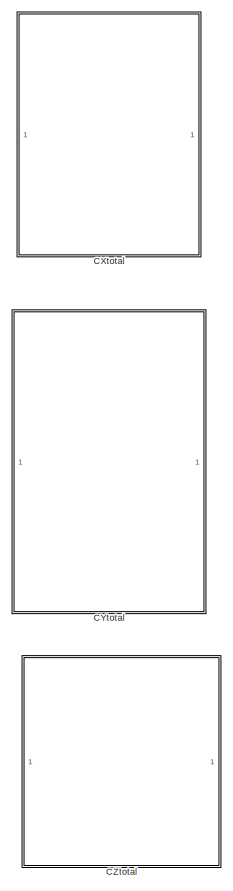
[diagram: root canvas - part 1/2, top center region]
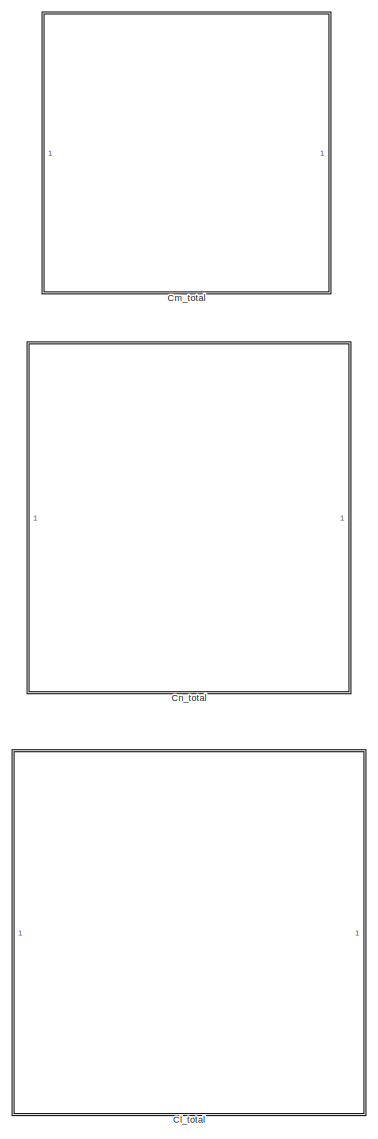
[diagram: root canvas - part 2/2, full width, bottom band]
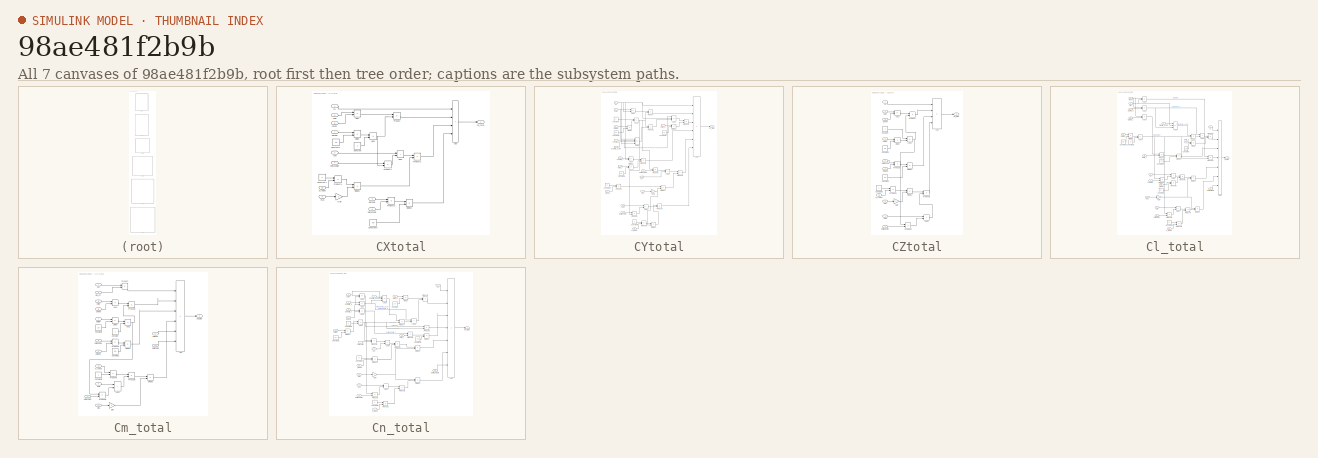
[diagram: thumbnail index - all 7 canvases of the model, root first then tree order]
MODEL slx_98ae481f2b9b
KIND library
CONFIG AbsTol = auto
CONFIG EnableMultiTasking = off
CONFIG FixedStep = auto
CONFIG MaxStep = auto
CONFIG MinStep = auto
CONFIG RelTol = 1e-3
CONFIG SampleTimeConstraint = Unconstrained
CONFIG SolverName = VariableStepAuto
CONFIG StartTime = 0.0
CONFIG StopTime = 10.0
BLOCK [SubSystem] CXtotal
BLOCK [Sum] CXtotal/Add
  IconShape = rectangular
  Inputs = ++++
BLOCK [Sum] CXtotal/Add1
  IconShape = rectangular
  Inputs = +-
BLOCK [Sum] CXtotal/Add2
  IconShape = rectangular
  Inputs = -+
BLOCK [Sum] CXtotal/Add3
  IconShape = rectangular
BLOCK [Inport] CXtotal/CX
BLOCK [Inport] CXtotal/CXHT0
  Port = 6
BLOCK [Outport] CXtotal/CX_total
BLOCK [Inport] CXtotal/CXlef
  Port = 2
BLOCK [Inport] CXtotal/CXq
  Port = 3
BLOCK [Constant] CXtotal/Constant
BLOCK [Constant] CXtotal/Constant1
  Value = 25
BLOCK [Constant] CXtotal/Constant4
  Value = c
BLOCK [Constant] CXtotal/Constant5
  Value = 60
BLOCK [Product] CXtotal/Divide
  Inputs = */
BLOCK [Product] CXtotal/Divide2
  Inputs = */
BLOCK [Product] CXtotal/Divide3
  Inputs = */
BLOCK [Gain] CXtotal/Gain
  Gain = 2
BLOCK [Product] CXtotal/Product
BLOCK [Product] CXtotal/Product1
BLOCK [Product] CXtotal/Product2
BLOCK [Product] CXtotal/Product3
BLOCK [Product] CXtotal/Product4
BLOCK [Inport] CXtotal/Vtas
  Port = 8
BLOCK [Inport] CXtotal/deltaCXSB
  Port = 5
BLOCK [Inport] CXtotal/deltaCXqlef
  Port = 4
BLOCK [Inport] CXtotal/deltaSB
  Port = 9
BLOCK [Inport] CXtotal/deltalef
  Port = 7
BLOCK [Inport] CXtotal/q_radps
  Port = 10
BLOCK [SubSystem] CYtotal
BLOCK [Sum] CYtotal/Add
  IconShape = rectangular
  Inputs = ++++++
BLOCK [Sum] CYtotal/Add1
  IconShape = rectangular
  Inputs = +-
BLOCK [Sum] CYtotal/Add2
  IconShape = rectangular
  Inputs = +-
BLOCK [Sum] CYtotal/Add3
  IconShape = rectangular
  Inputs = --++
BLOCK [Sum] CYtotal/Add4
  IconShape = rectangular
  Inputs = +-+
BLOCK [Sum] CYtotal/Add5
  IconShape = rectangular
  Inputs = +-
BLOCK [Sum] CYtotal/Add6
  IconShape = rectangular
BLOCK [Sum] CYtotal/Add7
  IconShape = rectangular
BLOCK [Inport] CYtotal/CY
BLOCK [Outport] CYtotal/CY_total
BLOCK [Inport] CYtotal/CYdelta_a
  Port = 4
BLOCK [Inport] CYtotal/CYdelta_aLEF
  Port = 5
BLOCK [Inport] CYtotal/CYdelta_r
  Port = 6
BLOCK [Inport] CYtotal/CYlef
  Port = 2
BLOCK [Inport] CYtotal/CYp
  Port = 12
BLOCK [Inport] CYtotal/CYr
  Port = 10
BLOCK [Constant] CYtotal/Constant
BLOCK [Constant] CYtotal/Constant1
  Value = 25
BLOCK [Constant] CYtotal/Constant2
  Value = 20
BLOCK [Constant] CYtotal/Constant3
  Value = 30
BLOCK [Constant] CYtotal/Constant4
  Value = b
BLOCK [Constant] CYtotal/Constant5
  Value = b
BLOCK [Product] CYtotal/Divide
  Inputs = */
BLOCK [Product] CYtotal/Divide1
  Inputs = */
BLOCK [Product] CYtotal/Divide2
  Inputs = */
BLOCK [Product] CYtotal/Divide3
  Inputs = */
BLOCK [Product] CYtotal/Divide4
  Inputs = */
BLOCK [Gain] CYtotal/Gain
  Gain = 2
BLOCK [Product] CYtotal/Product
BLOCK [Product] CYtotal/Product1
BLOCK [Product] CYtotal/Product2
BLOCK [Product] CYtotal/Product3
BLOCK [Product] CYtotal/Product4
BLOCK [Product] CYtotal/Product5
BLOCK [Product] CYtotal/Product6
BLOCK [Product] CYtotal/Product7
BLOCK [Product] CYtotal/Product8
BLOCK [Product] CYtotal/Product9
BLOCK [Inport] CYtotal/Vtas
  Port = 11
BLOCK [Inport] CYtotal/deltaCYplef
  Port = 13
BLOCK [Inport] CYtotal/deltaCYrLEF
  Port = 8
BLOCK [Inport] CYtotal/delta_a
  Port = 9
BLOCK [Inport] CYtotal/delta_r
  Port = 7
BLOCK [Inport] CYtotal/deltalef1
  Port = 3
BLOCK [Inport] CYtotal/p_radps
  Port = 15
BLOCK [Inport] CYtotal/r_radps
  Port = 14
BLOCK [SubSystem] CZtotal
BLOCK [Sum] CZtotal/Add
  IconShape = rectangular
  Inputs = ++++
BLOCK [Sum] CZtotal/Add1
  IconShape = rectangular
  Inputs = +-
BLOCK [Sum] CZtotal/Add2
  IconShape = rectangular
  Inputs = +-
BLOCK [Sum] CZtotal/Add3
  IconShape = rectangular
BLOCK [Inport] CZtotal/CZ
BLOCK [Inport] CZtotal/CZHT0
  Port = 3
BLOCK [Outport] CZtotal/CZ_total
BLOCK [Inport] CZtotal/CZlef
  Port = 2
BLOCK [Inport] CZtotal/CZq
  Port = 4
BLOCK [Constant] CZtotal/Constant
BLOCK [Constant] CZtotal/Constant1
  Value = 25
BLOCK [Constant] CZtotal/Constant2
  Value = 60
BLOCK [Constant] CZtotal/Constant3
  Value = c
BLOCK [Product] CZtotal/Divide
  Inputs = */
BLOCK [Product] CZtotal/Divide1
  Inputs = */
BLOCK [Product] CZtotal/Divide2
  Inputs = */
BLOCK [Gain] CZtotal/Gain
  Gain = 2
BLOCK [Product] CZtotal/Product
BLOCK [Product] CZtotal/Product1
BLOCK [Product] CZtotal/Product2
BLOCK [Product] CZtotal/Product3
BLOCK [Product] CZtotal/Product4
BLOCK [Inport] CZtotal/Vtas
  Port = 8
BLOCK [Inport] CZtotal/deltaCZSB
  Port = 6
BLOCK [Inport] CZtotal/deltaCZqlef
  Port = 9
BLOCK [Inport] CZtotal/deltaSB
  Port = 7
BLOCK [Inport] CZtotal/deltalef
  Port = 5
BLOCK [Inport] CZtotal/q_radps
  Port = 10
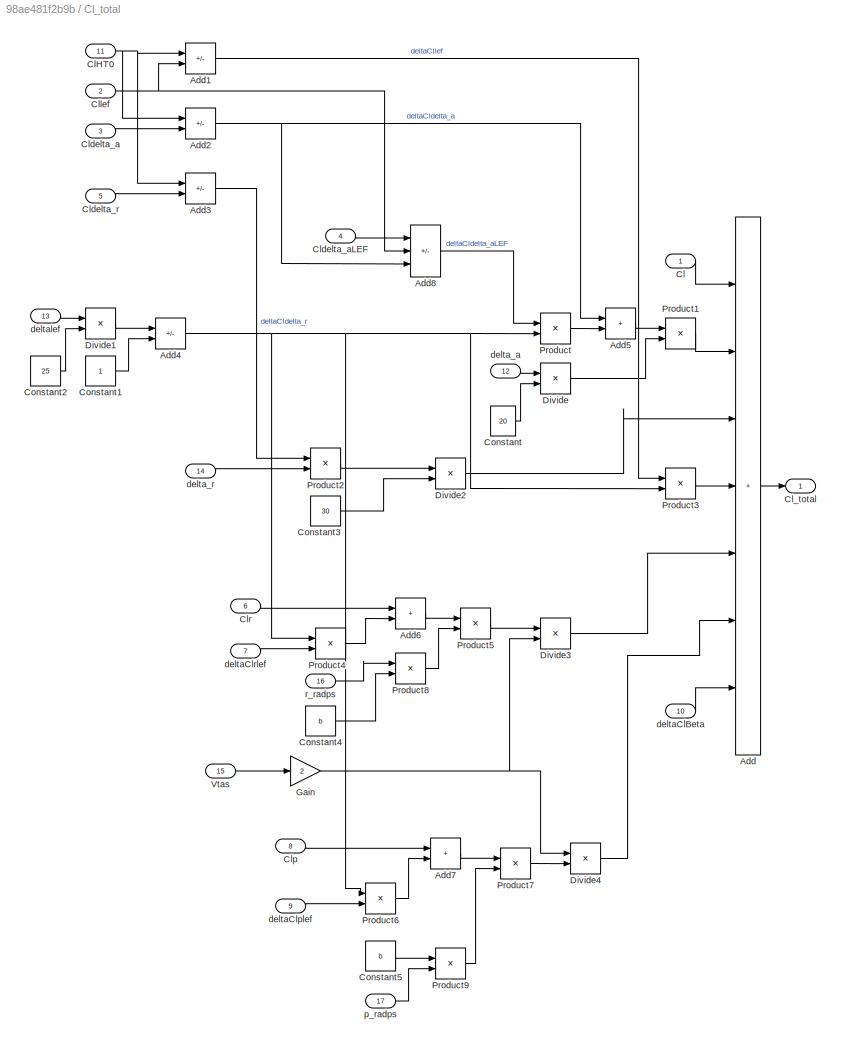
BLOCK [SubSystem] Cl_total
BLOCK [Sum] Cl_total/Add
  IconShape = rectangular
  Inputs = +++++++
BLOCK [Sum] Cl_total/Add1
  IconShape = rectangular
  Inputs = -+
BLOCK [Sum] Cl_total/Add2
  IconShape = rectangular
  Inputs = -+
BLOCK [Sum] Cl_total/Add3
  IconShape = rectangular
  Inputs = -+
BLOCK [Sum] Cl_total/Add4
  IconShape = rectangular
  Inputs = -+
BLOCK [Sum] Cl_total/Add5
  IconShape = rectangular
BLOCK [Sum] Cl_total/Add6
  IconShape = rectangular
BLOCK [Sum] Cl_total/Add7
  IconShape = rectangular
BLOCK [Sum] Cl_total/Add8
  IconShape = rectangular
  Inputs = +--
BLOCK [Inport] Cl_total/Cl
BLOCK [Inport] Cl_total/ClHT0
  Port = 11
BLOCK [Outport] Cl_total/Cl_total
BLOCK [Inport] Cl_total/Cldelta_a
  Port = 3
BLOCK [Inport] Cl_total/Cldelta_aLEF
  Port = 4
BLOCK [Inport] Cl_total/Cldelta_r
  Port = 5
BLOCK [Inport] Cl_total/Cllef
  Port = 2
BLOCK [Inport] Cl_total/Clp
  Port = 8
BLOCK [Inport] Cl_total/Clr
  Port = 6
BLOCK [Constant] Cl_total/Constant
  Value = 20
BLOCK [Constant] Cl_total/Constant1
BLOCK [Constant] Cl_total/Constant2
  Value = 25
BLOCK [Constant] Cl_total/Constant3
  Value = 30
BLOCK [Constant] Cl_total/Constant4
  Value = b
BLOCK [Constant] Cl_total/Constant5
  Value = b
BLOCK [Product] Cl_total/Divide
  Inputs = */
BLOCK [Product] Cl_total/Divide1
  Inputs = */
BLOCK [Product] Cl_total/Divide2
  Inputs = */
BLOCK [Product] Cl_total/Divide3
  Inputs = */
BLOCK [Product] Cl_total/Divide4
  Inputs = /*
BLOCK [Gain] Cl_total/Gain
  Gain = 2
BLOCK [Product] Cl_total/Product
BLOCK [Product] Cl_total/Product1
BLOCK [Product] Cl_total/Product2
BLOCK [Product] Cl_total/Product3
BLOCK [Product] Cl_total/Product4
BLOCK [Product] Cl_total/Product5
BLOCK [Product] Cl_total/Product6
BLOCK [Product] Cl_total/Product7
BLOCK [Product] Cl_total/Product8
BLOCK [Product] Cl_total/Product9
BLOCK [Inport] Cl_total/Vtas
  Port = 15
BLOCK [Inport] Cl_total/deltaClBeta
  Port = 10
BLOCK [Inport] Cl_total/deltaClplef
  Port = 9
BLOCK [Inport] Cl_total/deltaClrlef
  Port = 7
BLOCK [Inport] Cl_total/delta_a
  Port = 12
BLOCK [Inport] Cl_total/delta_r
  Port = 14
BLOCK [Inport] Cl_total/deltalef
  Port = 13
BLOCK [Inport] Cl_total/p_radps
  Port = 17
BLOCK [Inport] Cl_total/r_radps
  Port = 16
BLOCK [SubSystem] Cm_total
BLOCK [Sum] Cm_total/Add
  IconShape = rectangular
  Inputs = ++++++
BLOCK [Sum] Cm_total/Add1
  IconShape = rectangular
  Inputs = +-
BLOCK [Sum] Cm_total/Add2
  IconShape = rectangular
  Inputs = -+
BLOCK [Sum] Cm_total/Add3
  IconShape = rectangular
BLOCK [Inport] Cm_total/Cm
BLOCK [Inport] Cm_total/CmHT0
  Port = 8
BLOCK [Outport] Cm_total/Cm_total
BLOCK [Inport] Cm_total/Cmlef
  Port = 6
BLOCK [Inport] Cm_total/Cmq
  Port = 3
BLOCK [Constant] Cm_total/Constant
BLOCK [Constant] Cm_total/Constant1
  Value = 25
BLOCK [Constant] Cm_total/Constant2
  Value = 60
BLOCK [Constant] Cm_total/Constant3
  Value = c
BLOCK [Product] Cm_total/Divide
  Inputs = */
BLOCK [Product] Cm_total/Divide1
  Inputs = */
BLOCK [Product] Cm_total/Divide2
  Inputs = */
BLOCK [Gain] Cm_total/Gain
  Gain = 2
BLOCK [Product] Cm_total/Product
BLOCK [Product] Cm_total/Product1
BLOCK [Product] Cm_total/Product2
BLOCK [Product] Cm_total/Product3
BLOCK [Product] Cm_total/Product4
BLOCK [Product] Cm_total/Product5
BLOCK [Inport] Cm_total/Vtas
  Port = 10
BLOCK [Inport] Cm_total/deltaCm
  Port = 11
BLOCK [Inport] Cm_total/deltaCmSB
  Port = 9
BLOCK [Inport] Cm_total/deltaCmds
  Port = 12
BLOCK [Inport] Cm_total/deltaCmqlef
  Port = 4
BLOCK [Inport] Cm_total/deltaSB
  Port = 5
BLOCK [Inport] Cm_total/deltalef
  Port = 7
BLOCK [Inport] Cm_total/eta_HT
  Port = 2
BLOCK [Inport] Cm_total/q_radps
  Port = 13
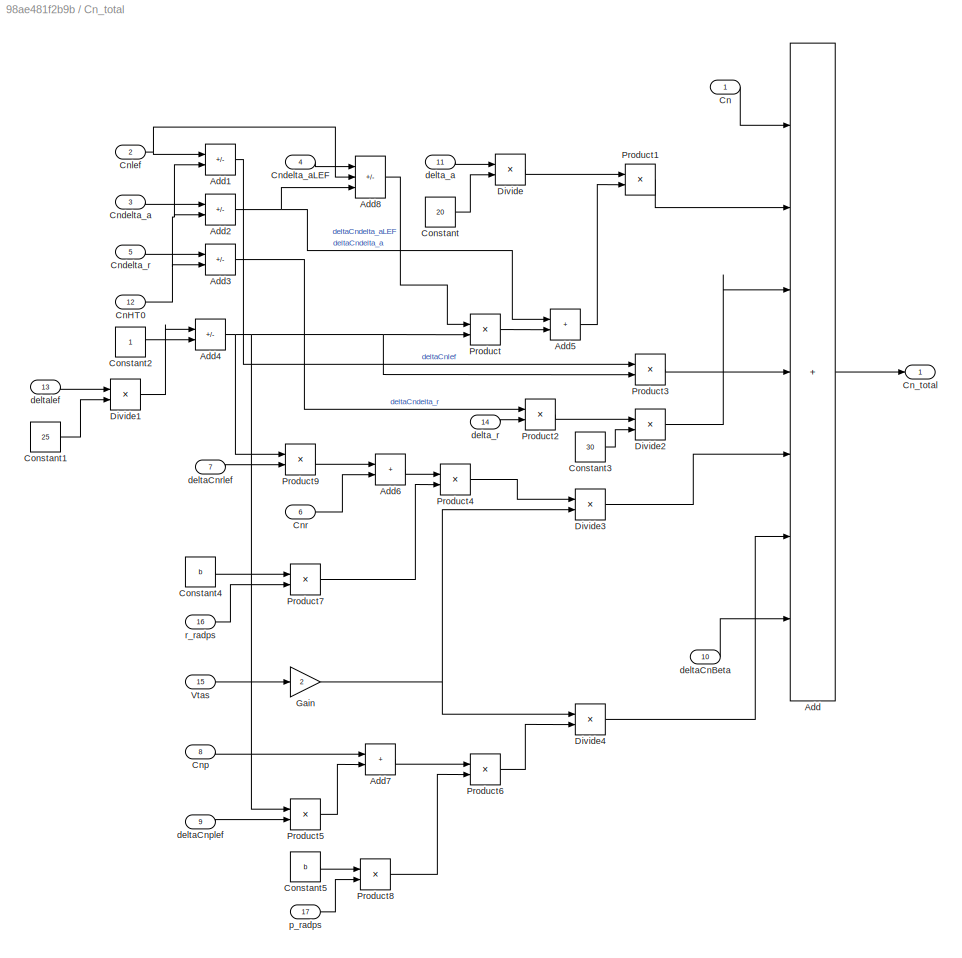
BLOCK [SubSystem] Cn_total
BLOCK [Sum] Cn_total/Add
  IconShape = rectangular
  Inputs = +++++++
BLOCK [Sum] Cn_total/Add1
  IconShape = rectangular
  Inputs = +-
BLOCK [Sum] Cn_total/Add2
  IconShape = rectangular
  Inputs = +-
BLOCK [Sum] Cn_total/Add3
  IconShape = rectangular
  Inputs = +-
BLOCK [Sum] Cn_total/Add4
  IconShape = rectangular
  Inputs = -+
BLOCK [Sum] Cn_total/Add5
  IconShape = rectangular
BLOCK [Sum] Cn_total/Add6
  IconShape = rectangular
BLOCK [Sum] Cn_total/Add7
  IconShape = rectangular
BLOCK [Sum] Cn_total/Add8
  IconShape = rectangular
  Inputs = +--
BLOCK [Inport] Cn_total/Cn
BLOCK [Inport] Cn_total/CnHT0
  Port = 12
BLOCK [Outport] Cn_total/Cn_total
BLOCK [Inport] Cn_total/Cndelta_a
  Port = 3
BLOCK [Inport] Cn_total/Cndelta_aLEF
  Port = 4
BLOCK [Inport] Cn_total/Cndelta_r
  Port = 5
BLOCK [Inport] Cn_total/Cnlef
  Port = 2
BLOCK [Inport] Cn_total/Cnp
  Port = 8
BLOCK [Inport] Cn_total/Cnr
  Port = 6
BLOCK [Constant] Cn_total/Constant
  Value = 20
BLOCK [Constant] Cn_total/Constant1
  Value = 25
BLOCK [Constant] Cn_total/Constant2
BLOCK [Constant] Cn_total/Constant3
  Value = 30
BLOCK [Constant] Cn_total/Constant4
  Value = b
BLOCK [Constant] Cn_total/Constant5
  Value = b
BLOCK [Product] Cn_total/Divide
  Inputs = */
BLOCK [Product] Cn_total/Divide1
  Inputs = */
BLOCK [Product] Cn_total/Divide2
  Inputs = */
BLOCK [Product] Cn_total/Divide3
  Inputs = */
BLOCK [Product] Cn_total/Divide4
  Inputs = /*
BLOCK [Gain] Cn_total/Gain
  Gain = 2
BLOCK [Product] Cn_total/Product
BLOCK [Product] Cn_total/Product1
BLOCK [Product] Cn_total/Product2
BLOCK [Product] Cn_total/Product3
BLOCK [Product] Cn_total/Product4
BLOCK [Product] Cn_total/Product5
BLOCK [Product] Cn_total/Product6
BLOCK [Product] Cn_total/Product7
BLOCK [Product] Cn_total/Product8
BLOCK [Product] Cn_total/Product9
BLOCK [Inport] Cn_total/Vtas
  Port = 15
BLOCK [Inport] Cn_total/deltaCnBeta
  Port = 10
BLOCK [Inport] Cn_total/deltaCnplef
  Port = 9
BLOCK [Inport] Cn_total/deltaCnrlef
  Port = 7
BLOCK [Inport] Cn_total/delta_a
  Port = 11
BLOCK [Inport] Cn_total/delta_r
  Port = 14
BLOCK [Inport] Cn_total/deltalef
  Port = 13
BLOCK [Inport] Cn_total/p_radps
  Port = 17
BLOCK [Inport] Cn_total/r_radps
  Port = 16
LINE CXtotal/Add1:1 -> CXtotal/Product:1
NET CXtotal/Add2:1 -> CXtotal/Product1:2, CXtotal/Product:2
LINE CXtotal/Add3:1 -> CXtotal/Product2:1
LINE CXtotal/Add:1 -> CXtotal/CX_total:1
LINE CXtotal/CX:1 -> CXtotal/Add:1
LINE CXtotal/CXHT0:1 -> CXtotal/Add1:2
LINE CXtotal/CXlef:1 -> CXtotal/Add1:1
LINE CXtotal/CXq:1 -> CXtotal/Add3:1
LINE CXtotal/Constant1:1 -> CXtotal/Divide:2
LINE CXtotal/Constant4:1 -> CXtotal/Product4:1
LINE CXtotal/Constant5:1 -> CXtotal/Divide3:2
LINE CXtotal/Constant:1 -> CXtotal/Add2:2
LINE CXtotal/Divide2:1 -> CXtotal/Product2:2
LINE CXtotal/Divide3:1 -> CXtotal/Add:4
LINE CXtotal/Divide:1 -> CXtotal/Add2:1
LINE CXtotal/Gain:1 -> CXtotal/Divide2:2
LINE CXtotal/Product1:1 -> CXtotal/Add3:2
LINE CXtotal/Product2:1 -> CXtotal/Add:3
LINE CXtotal/Product3:1 -> CXtotal/Divide3:1
LINE CXtotal/Product4:1 -> CXtotal/Divide2:1
LINE CXtotal/Product:1 -> CXtotal/Add:2
LINE CXtotal/Vtas:1 -> CXtotal/Gain:1
LINE CXtotal/deltaCXSB:1 -> CXtotal/Product3:2
LINE CXtotal/deltaCXqlef:1 -> CXtotal/Product1:1
LINE CXtotal/deltaSB:1 -> CXtotal/Product3:1
LINE CXtotal/deltalef:1 -> CXtotal/Divide:1
LINE CXtotal/q_radps:1 -> CXtotal/Product4:2
LINE CYtotal/Add1:1 -> CYtotal/Product:1
NET CYtotal/Add2:1 -> CYtotal/Product1:1, CYtotal/Product4:1, CYtotal/Product6:2, CYtotal/Product:2
LINE CYtotal/Add3:1 -> CYtotal/Product1:2
LINE CYtotal/Add4:1 -> CYtotal/Product2:1
LINE CYtotal/Add5:1 -> CYtotal/Product3:1
LINE CYtotal/Add6:1 -> CYtotal/Product5:1
LINE CYtotal/Add7:1 -> CYtotal/Product7:2
LINE CYtotal/Add:1 -> CYtotal/CY_total:1
NET CYtotal/CY:1 -> CYtotal/Add1:2, CYtotal/Add3:4, CYtotal/Add4:2, CYtotal/Add5:2, CYtotal/Add:1
NET CYtotal/CYdelta_a:1 -> CYtotal/Add3:2, CYtotal/Add4:1
LINE CYtotal/CYdelta_aLEF:1 -> CYtotal/Add3:3
LINE CYtotal/CYdelta_r:1 -> CYtotal/Add5:1
NET CYtotal/CYlef:1 -> CYtotal/Add1:1, CYtotal/Add3:1
LINE CYtotal/CYp:1 -> CYtotal/Add7:1
LINE CYtotal/CYr:1 -> CYtotal/Add6:2
LINE CYtotal/Constant1:1 -> CYtotal/Divide:2
LINE CYtotal/Constant2:1 -> CYtotal/Divide1:2
LINE CYtotal/Constant3:1 -> CYtotal/Divide2:2
LINE CYtotal/Constant4:1 -> CYtotal/Product8:1
LINE CYtotal/Constant5:1 -> CYtotal/Product9:1
LINE CYtotal/Constant:1 -> CYtotal/Add2:1
LINE CYtotal/Divide1:1 -> CYtotal/Product2:2
LINE CYtotal/Divide2:1 -> CYtotal/Product3:2
LINE CYtotal/Divide3:1 -> CYtotal/Product5:2
LINE CYtotal/Divide4:1 -> CYtotal/Product7:1
LINE CYtotal/Divide:1 -> CYtotal/Add2:2
NET CYtotal/Gain:1 -> CYtotal/Divide3:2, CYtotal/Divide4:2
LINE CYtotal/Product1:1 -> CYtotal/Add4:3
LINE CYtotal/Product2:1 -> CYtotal/Add:3
LINE CYtotal/Product3:1 -> CYtotal/Add:4
LINE CYtotal/Product4:1 -> CYtotal/Add6:1
LINE CYtotal/Product5:1 -> CYtotal/Add:5
LINE CYtotal/Product6:1 -> CYtotal/Add7:2
LINE CYtotal/Product7:1 -> CYtotal/Add:6
LINE CYtotal/Product8:1 -> CYtotal/Divide3:1
LINE CYtotal/Product9:1 -> CYtotal/Divide4:1
LINE CYtotal/Product:1 -> CYtotal/Add:2
LINE CYtotal/Vtas:1 -> CYtotal/Gain:1
LINE CYtotal/deltaCYplef:1 -> CYtotal/Product6:1
LINE CYtotal/deltaCYrLEF:1 -> CYtotal/Product4:2
LINE CYtotal/delta_a:1 -> CYtotal/Divide1:1
LINE CYtotal/delta_r:1 -> CYtotal/Divide2:1
LINE CYtotal/deltalef1:1 -> CYtotal/Divide:1
LINE CYtotal/p_radps:1 -> CYtotal/Product9:2
LINE CYtotal/r_radps:1 -> CYtotal/Product8:2
LINE CZtotal/Add1:1 -> CZtotal/Product:1
NET CZtotal/Add2:1 -> CZtotal/Product3:1, CZtotal/Product:2
LINE CZtotal/Add3:1 -> CZtotal/Product2:2
LINE CZtotal/Add:1 -> CZtotal/CZ_total:1
LINE CZtotal/CZ:1 -> CZtotal/Add:1
LINE CZtotal/CZHT0:1 -> CZtotal/Add1:2
LINE CZtotal/CZlef:1 -> CZtotal/Add1:1
LINE CZtotal/CZq:1 -> CZtotal/Add3:1
LINE CZtotal/Constant1:1 -> CZtotal/Divide:2
LINE CZtotal/Constant2:1 -> CZtotal/Divide1:2
LINE CZtotal/Constant3:1 -> CZtotal/Product4:1
LINE CZtotal/Constant:1 -> CZtotal/Add2:1
LINE CZtotal/Divide1:1 -> CZtotal/Add:3
LINE CZtotal/Divide2:1 -> CZtotal/Product2:1
LINE CZtotal/Divide:1 -> CZtotal/Add2:2
LINE CZtotal/Gain:1 -> CZtotal/Divide2:2
LINE CZtotal/Product1:1 -> CZtotal/Divide1:1
LINE CZtotal/Product2:1 -> CZtotal/Add:4
LINE CZtotal/Product3:1 -> CZtotal/Add3:2
LINE CZtotal/Product4:1 -> CZtotal/Divide2:1
LINE CZtotal/Product:1 -> CZtotal/Add:2
LINE CZtotal/Vtas:1 -> CZtotal/Gain:1
LINE CZtotal/deltaCZSB:1 -> CZtotal/Product1:1
LINE CZtotal/deltaCZqlef:1 -> CZtotal/Product3:2
LINE CZtotal/deltaSB:1 -> CZtotal/Product1:2
LINE CZtotal/deltalef:1 -> CZtotal/Divide:1
LINE CZtotal/q_radps:1 -> CZtotal/Product4:2
LINE Cl_total/Add1:1 -> Cl_total/Product3:1
NET Cl_total/Add2:1 -> Cl_total/Add5:1, Cl_total/Add8:3
LINE Cl_total/Add3:1 -> Cl_total/Product2:1
NET Cl_total/Add4:1 -> Cl_total/Product3:2, Cl_total/Product4:1, Cl_total/Product6:1, Cl_total/Product:2
LINE Cl_total/Add5:1 -> Cl_total/Product1:1
LINE Cl_total/Add6:1 -> Cl_total/Product5:1
LINE Cl_total/Add7:1 -> Cl_total/Product7:1
LINE Cl_total/Add8:1 -> Cl_total/Product:1
LINE Cl_total/Add:1 -> Cl_total/Cl_total:1
LINE Cl_total/Cl:1 -> Cl_total/Add:1
NET Cl_total/ClHT0:1 -> Cl_total/Add1:1, Cl_total/Add2:1, Cl_total/Add3:1
LINE Cl_total/Cldelta_a:1 -> Cl_total/Add2:2
LINE Cl_total/Cldelta_aLEF:1 -> Cl_total/Add8:1
LINE Cl_total/Cldelta_r:1 -> Cl_total/Add3:2
NET Cl_total/Cllef:1 -> Cl_total/Add1:2, Cl_total/Add8:2
LINE Cl_total/Clp:1 -> Cl_total/Add7:1
LINE Cl_total/Clr:1 -> Cl_total/Add6:1
LINE Cl_total/Constant1:1 -> Cl_total/Add4:2
LINE Cl_total/Constant2:1 -> Cl_total/Divide1:2
LINE Cl_total/Constant3:1 -> Cl_total/Divide2:2
LINE Cl_total/Constant4:1 -> Cl_total/Product8:2
LINE Cl_total/Constant5:1 -> Cl_total/Product9:1
LINE Cl_total/Constant:1 -> Cl_total/Divide:2
LINE Cl_total/Divide1:1 -> Cl_total/Add4:1
LINE Cl_total/Divide2:1 -> Cl_total/Add:3
LINE Cl_total/Divide3:1 -> Cl_total/Add:5
LINE Cl_total/Divide4:1 -> Cl_total/Add:6
LINE Cl_total/Divide:1 -> Cl_total/Product1:2
NET Cl_total/Gain:1 -> Cl_total/Divide3:2, Cl_total/Divide4:1
LINE Cl_total/Product1:1 -> Cl_total/Add:2
LINE Cl_total/Product2:1 -> Cl_total/Divide2:1
LINE Cl_total/Product3:1 -> Cl_total/Add:4
LINE Cl_total/Product4:1 -> Cl_total/Add6:2
LINE Cl_total/Product5:1 -> Cl_total/Divide3:1
LINE Cl_total/Product6:1 -> Cl_total/Add7:2
LINE Cl_total/Product7:1 -> Cl_total/Divide4:2
LINE Cl_total/Product8:1 -> Cl_total/Product5:2
LINE Cl_total/Product9:1 -> Cl_total/Product7:2
LINE Cl_total/Product:1 -> Cl_total/Add5:2
LINE Cl_total/Vtas:1 -> Cl_total/Gain:1
LINE Cl_total/deltaClBeta:1 -> Cl_total/Add:7
LINE Cl_total/deltaClplef:1 -> Cl_total/Product6:2
LINE Cl_total/deltaClrlef:1 -> Cl_total/Product4:2
LINE Cl_total/delta_a:1 -> Cl_total/Divide:1
LINE Cl_total/delta_r:1 -> Cl_total/Product2:2
LINE Cl_total/deltalef:1 -> Cl_total/Divide1:1
LINE Cl_total/p_radps:1 -> Cl_total/Product9:2
LINE Cl_total/r_radps:1 -> Cl_total/Product8:1
LINE Cm_total/Add1:1 -> Cm_total/Product1:1
NET Cm_total/Add2:1 -> Cm_total/Product1:2, Cm_total/Product5:1
LINE Cm_total/Add3:1 -> Cm_total/Product3:2
LINE Cm_total/Add:1 -> Cm_total/Cm_total:1
LINE Cm_total/Cm:1 -> Cm_total/Product:1
LINE Cm_total/CmHT0:1 -> Cm_total/Add1:2
LINE Cm_total/Cmlef:1 -> Cm_total/Add1:1
LINE Cm_total/Cmq:1 -> Cm_total/Add3:1
LINE Cm_total/Constant1:1 -> Cm_total/Divide:2
LINE Cm_total/Constant2:1 -> Cm_total/Divide1:2
LINE Cm_total/Constant3:1 -> Cm_total/Product4:2
LINE Cm_total/Constant:1 -> Cm_total/Add2:2
LINE Cm_total/Divide1:1 -> Cm_total/Add:3
LINE Cm_total/Divide2:1 -> Cm_total/Add:4
LINE Cm_total/Divide:1 -> Cm_total/Add2:1
LINE Cm_total/Gain:1 -> Cm_total/Divide2:2
LINE Cm_total/Product1:1 -> Cm_total/Add:2
LINE Cm_total/Product2:1 -> Cm_total/Divide1:1
LINE Cm_total/Product3:1 -> Cm_total/Divide2:1
LINE Cm_total/Product4:1 -> Cm_total/Product3:1
LINE Cm_total/Product5:1 -> Cm_total/Add3:2
LINE Cm_total/Product:1 -> Cm_total/Add:1
LINE Cm_total/Vtas:1 -> Cm_total/Gain:1
LINE Cm_total/deltaCm:1 -> Cm_total/Add:5
LINE Cm_total/deltaCmSB:1 -> Cm_total/Product2:1
LINE Cm_total/deltaCmds:1 -> Cm_total/Add:6
LINE Cm_total/deltaCmqlef:1 -> Cm_total/Product5:2
LINE Cm_total/deltaSB:1 -> Cm_total/Product2:2
LINE Cm_total/deltalef:1 -> Cm_total/Divide:1
LINE Cm_total/eta_HT:1 -> Cm_total/Product:2
LINE Cm_total/q_radps:1 -> Cm_total/Product4:1
LINE Cn_total/Add1:1 -> Cn_total/Product3:1
NET Cn_total/Add2:1 -> Cn_total/Add5:1, Cn_total/Add8:3
LINE Cn_total/Add3:1 -> Cn_total/Product2:1
NET Cn_total/Add4:1 -> Cn_total/Product3:2, Cn_total/Product5:1, Cn_total/Product9:1, Cn_total/Product:2
LINE Cn_total/Add5:1 -> Cn_total/Product1:2
LINE Cn_total/Add6:1 -> Cn_total/Product4:1
LINE Cn_total/Add7:1 -> Cn_total/Product6:1
LINE Cn_total/Add8:1 -> Cn_total/Product:1
LINE Cn_total/Add:1 -> Cn_total/Cn_total:1
LINE Cn_total/Cn:1 -> Cn_total/Add:1
NET Cn_total/CnHT0:1 -> Cn_total/Add1:2, Cn_total/Add2:2, Cn_total/Add3:2
LINE Cn_total/Cndelta_a:1 -> Cn_total/Add2:1
LINE Cn_total/Cndelta_aLEF:1 -> Cn_total/Add8:1
LINE Cn_total/Cndelta_r:1 -> Cn_total/Add3:1
NET Cn_total/Cnlef:1 -> Cn_total/Add1:1, Cn_total/Add8:2
LINE Cn_total/Cnp:1 -> Cn_total/Add7:1
LINE Cn_total/Cnr:1 -> Cn_total/Add6:2
LINE Cn_total/Constant1:1 -> Cn_total/Divide1:2
LINE Cn_total/Constant2:1 -> Cn_total/Add4:2
LINE Cn_total/Constant3:1 -> Cn_total/Divide2:2
LINE Cn_total/Constant4:1 -> Cn_total/Product7:1
LINE Cn_total/Constant5:1 -> Cn_total/Product8:1
LINE Cn_total/Constant:1 -> Cn_total/Divide:2
LINE Cn_total/Divide1:1 -> Cn_total/Add4:1
LINE Cn_total/Divide2:1 -> Cn_total/Add:3
LINE Cn_total/Divide3:1 -> Cn_total/Add:5
LINE Cn_total/Divide4:1 -> Cn_total/Add:6
LINE Cn_total/Divide:1 -> Cn_total/Product1:1
NET Cn_total/Gain:1 -> Cn_total/Divide3:2, Cn_total/Divide4:1
LINE Cn_total/Product1:1 -> Cn_total/Add:2
LINE Cn_total/Product2:1 -> Cn_total/Divide2:1
LINE Cn_total/Product3:1 -> Cn_total/Add:4
LINE Cn_total/Product4:1 -> Cn_total/Divide3:1
LINE Cn_total/Product5:1 -> Cn_total/Add7:2
LINE Cn_total/Product6:1 -> Cn_total/Divide4:2
LINE Cn_total/Product7:1 -> Cn_total/Product4:2
LINE Cn_total/Product8:1 -> Cn_total/Product6:2
LINE Cn_total/Product9:1 -> Cn_total/Add6:1
LINE Cn_total/Product:1 -> Cn_total/Add5:2
LINE Cn_total/Vtas:1 -> Cn_total/Gain:1
LINE Cn_total/deltaCnBeta:1 -> Cn_total/Add:7
LINE Cn_total/deltaCnplef:1 -> Cn_total/Product5:2
LINE Cn_total/deltaCnrlef:1 -> Cn_total/Product9:2
LINE Cn_total/delta_a:1 -> Cn_total/Divide:1
LINE Cn_total/delta_r:1 -> Cn_total/Product2:2
LINE Cn_total/deltalef:1 -> Cn_total/Divide1:1
LINE Cn_total/p_radps:1 -> Cn_total/Product8:2
LINE Cn_total/r_radps:1 -> Cn_total/Product7:2
note: NET lines group one-source signal fan-out (src -> all destinations, sorted); 1:1 wires keep LINE
